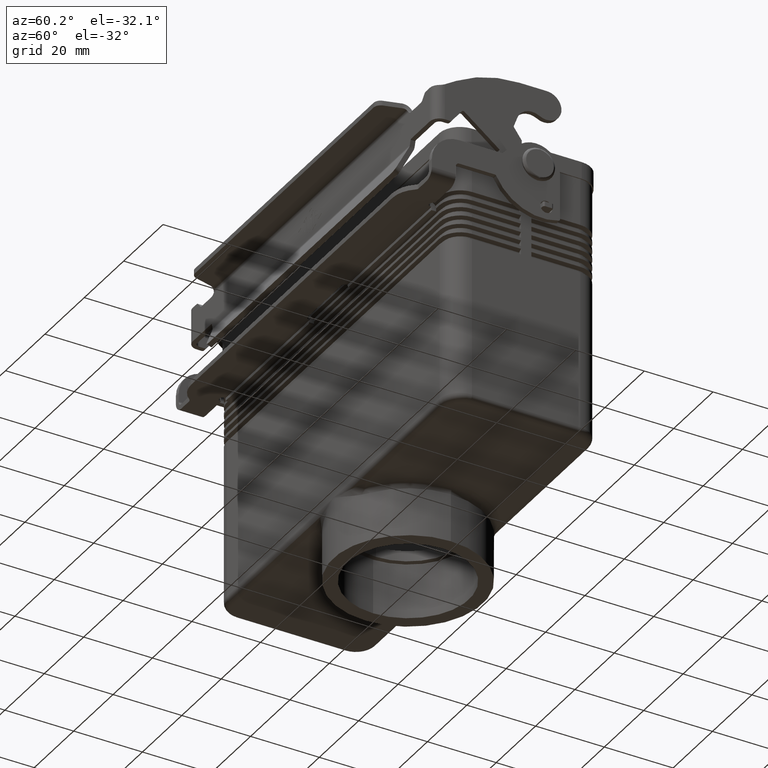
[diagram: clean part render]
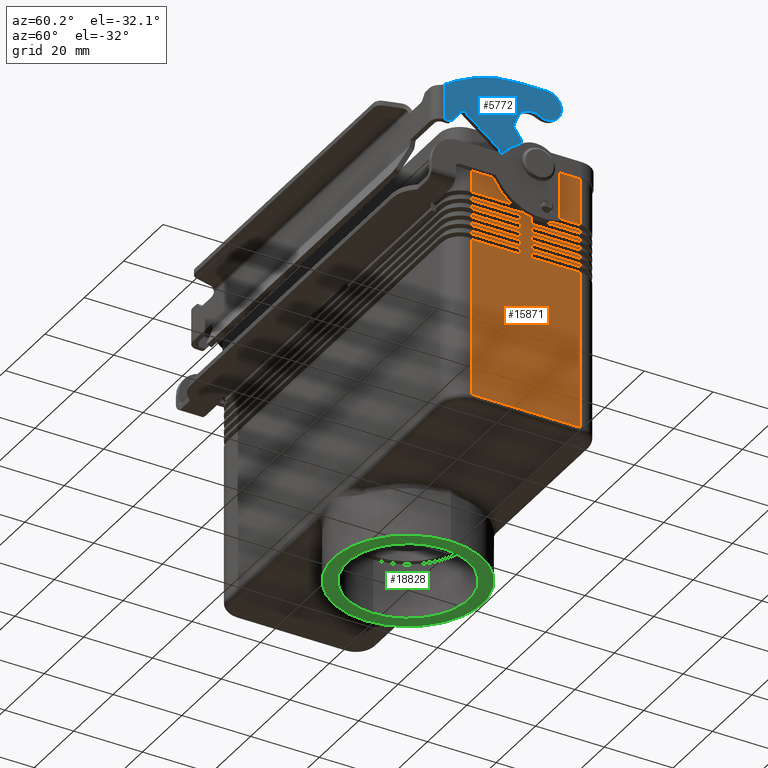
[diagram: same view with three faces highlighted in distinct colors, each labeled with its STEP entity id]
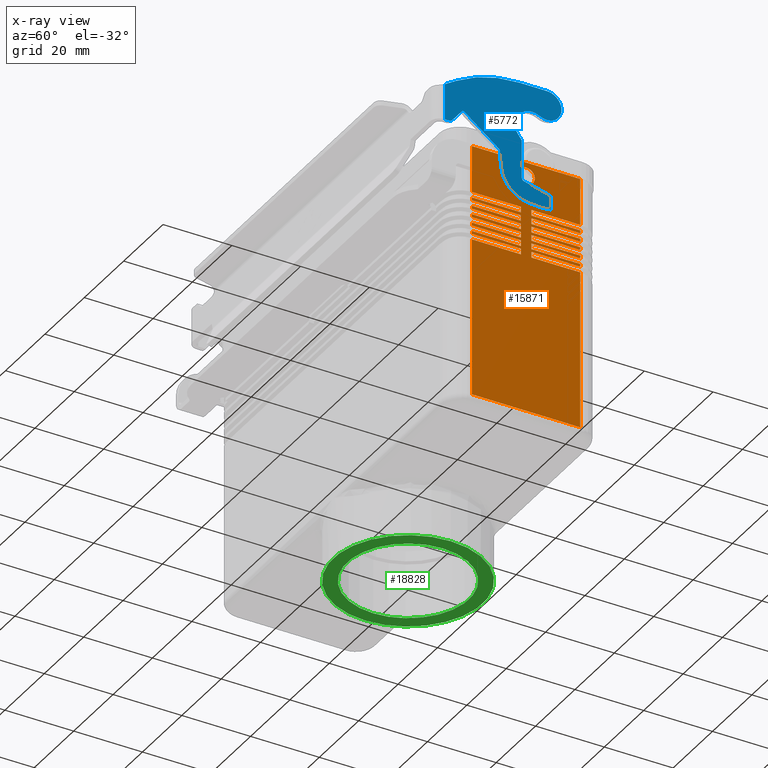
[diagram: x-ray of the same camera — body ghosted, the three highlighted faces saturated]
A machine part, auxiliary view with three faces highlighted in distinct colors.
The next image is the same camera in x-ray (body ghosted, the three faces saturated) — at least one of them is partly hidden behind the body in this view.
Their STEP definitions:

[orange] entity #15871 — the highlighted planar face has unit normal (1, 0, 0).
#9230=CARTESIAN_POINT('',(59.999999999999964,0.0,2.500000000000036));
#9231=VERTEX_POINT('',#9230);
#9240=CARTESIAN_POINT('',(60.0,3.061516E-016,-2.499999999999957));
#9241=VERTEX_POINT('',#9240);
#9242=CARTESIAN_POINT('',(60.000000000000007,0.0,3.821030E-014));
#9243=DIRECTION('',(-1.0,0.0,0.0));
#9244=DIRECTION('',(0.0,0.0,1.0));
#9245=AXIS2_PLACEMENT_3D('',#9242,#9243,#9244);
#9246=CIRCLE('',#9245,2.499999999999996);
#9247=EDGE_CURVE('',#9241,#9231,#9246,.T.);
#9335=CARTESIAN_POINT('',(60.0,-1.500000000000000,-23.827350269189623));
#9336=VERTEX_POINT('',#9335);
#9337=CARTESIAN_POINT('',(59.999999999999993,-15.750000000000004,-23.827350269189616));
#9338=VERTEX_POINT('',#9337);
#9339=CARTESIAN_POINT('',(60.0,-1.500000000000000,-23.827350269189623));
#9340=DIRECTION('',(0.0,-1.0,0.0));
#9341=VECTOR('',#9340,14.250000000000004);
#9342=LINE('',#9339,#9341);
#9343=EDGE_CURVE('',#9336,#9338,#9342,.T.);
#9785=CARTESIAN_POINT('',(59.999999999999993,-15.750000000000004,-22.172649730810384));
#9786=VERTEX_POINT('',#9785);
#9856=CARTESIAN_POINT('',(60.0,-1.500000000000000,-22.172649730810381));
#9857=VERTEX_POINT('',#9856);
#9858=CARTESIAN_POINT('',(59.999999999999993,-15.750000000000004,-22.172649730810384));
#9859=DIRECTION('',(0.0,1.0,0.0));
#9860=VECTOR('',#9859,14.250000000000004);
#9861=LINE('',#9858,#9860);
#9862=EDGE_CURVE('',#9786,#9857,#9861,.T.);
#9904=CARTESIAN_POINT('',(60.0,-1.500000000000000,-22.172649730810381));
#9905=DIRECTION('',(0.0,0.0,-1.0));
#9906=VECTOR('',#9905,1.654700538379242);
#9907=LINE('',#9904,#9906);
#9908=EDGE_CURVE('',#9857,#9336,#9907,.T.);
#9921=CARTESIAN_POINT('',(60.0,-1.500000000000000,-21.327350269189623));
#9922=VERTEX_POINT('',#9921);
#9923=CARTESIAN_POINT('',(59.999999999999993,-15.750000000000004,-21.327350269189619));
#9924=VERTEX_POINT('',#9923);
#9925=CARTESIAN_POINT('',(60.0,-1.500000000000000,-21.327350269189623));
#9926=DIRECTION('',(0.0,-1.0,0.0));
#9927=VECTOR('',#9926,14.250000000000004);
#9928=LINE('',#9925,#9927);
#9929=EDGE_CURVE('',#9922,#9924,#9928,.T.);
#10371=CARTESIAN_POINT('',(59.999999999999993,-15.750000000000004,-19.672649730810381));
#10372=VERTEX_POINT('',#10371);
#10442=CARTESIAN_POINT('',(60.0,-1.500000000000000,-19.672649730810377));
#10443=VERTEX_POINT('',#10442);
#10444=CARTESIAN_POINT('',(59.999999999999993,-15.750000000000004,-19.672649730810381));
#10445=DIRECTION('',(0.0,1.0,0.0));
#10446=VECTOR('',#10445,14.250000000000004);
#10447=LINE('',#10444,#10446);
#10448=EDGE_CURVE('',#10372,#10443,#10447,.T.);
#10490=CARTESIAN_POINT('',(60.0,-1.500000000000000,-19.672649730810377));
#10491=DIRECTION('',(0.0,0.0,-1.0));
#10492=VECTOR('',#10491,1.654700538379245);
#10493=LINE('',#10490,#10492);
#10494=EDGE_CURVE('',#10443,#9922,#10493,.T.);
#10507=CARTESIAN_POINT('',(60.0,-1.500000000000000,-18.827350269189623));
#10508=VERTEX_POINT('',#10507);
#10509=CARTESIAN_POINT('',(59.999999999999993,-15.750000000000004,-18.827350269189619));
#10510=VERTEX_POINT('',#10509);
#10511=CARTESIAN_POINT('',(60.0,-1.500000000000000,-18.827350269189623));
#10512=DIRECTION('',(0.0,-1.0,0.0));
#10513=VECTOR('',#10512,14.250000000000004);
#10514=LINE('',#10511,#10513);
#10515=EDGE_CURVE('',#10508,#10510,#10514,.T.);
#10957=CARTESIAN_POINT('',(59.999999999999993,-15.750000000000004,-17.172649730810384));
#10958=VERTEX_POINT('',#10957);
#11028=CARTESIAN_POINT('',(60.0,-1.500000000000000,-17.172649730810377));
#11029=VERTEX_POINT('',#11028);
#11030=CARTESIAN_POINT('',(59.999999999999993,-15.750000000000004,-17.172649730810384));
#11031=DIRECTION('',(0.0,1.0,0.0));
#11032=VECTOR('',#11031,14.250000000000004);
#11033=LINE('',#11030,#11032);
#11034=EDGE_CURVE('',#10958,#11029,#11033,.T.);
#11076=CARTESIAN_POINT('',(60.0,-1.500000000000000,-17.172649730810377));
#11077=DIRECTION('',(0.0,0.0,-1.0));
#11078=VECTOR('',#11077,1.654700538379245);
#11079=LINE('',#11076,#11078);
#11080=EDGE_CURVE('',#11029,#10508,#11079,.T.);
#11093=CARTESIAN_POINT('',(60.0,-1.500000000000000,-16.327350269189623));
#11094=VERTEX_POINT('',#11093);
#11095=CARTESIAN_POINT('',(59.999999999999993,-15.750000000000004,-16.327350269189623));
#11096=VERTEX_POINT('',#11095);
#11097=CARTESIAN_POINT('',(60.0,-1.500000000000000,-16.327350269189623));
#11098=DIRECTION('',(0.0,-1.0,0.0));
#11099=VECTOR('',#11098,14.250000000000004);
#11100=LINE('',#11097,#11099);
#11101=EDGE_CURVE('',#11094,#11096,#11100,.T.);
#11543=CARTESIAN_POINT('',(59.999999999999993,-15.750000000000004,-14.672649730810383));
#11544=VERTEX_POINT('',#11543);
#11614=CARTESIAN_POINT('',(60.0,-1.500000000000000,-14.672649730810377));
#11615=VERTEX_POINT('',#11614);
#11616=CARTESIAN_POINT('',(59.999999999999993,-15.750000000000004,-14.672649730810383));
#11617=DIRECTION('',(0.0,1.0,0.0));
#11618=VECTOR('',#11617,14.250000000000004);
#11619=LINE('',#11616,#11618);
#11620=EDGE_CURVE('',#11544,#11615,#11619,.T.);
#11662=CARTESIAN_POINT('',(60.0,-1.500000000000000,-14.672649730810377));
#11663=DIRECTION('',(0.0,0.0,-1.0));
#11664=VECTOR('',#11663,1.654700538379245);
#11665=LINE('',#11662,#11664);
#11666=EDGE_CURVE('',#11615,#11094,#11665,.T.);
#11679=CARTESIAN_POINT('',(60.0,-1.500000000000000,-13.827350269189623));
#11680=VERTEX_POINT('',#11679);
#11681=CARTESIAN_POINT('',(59.999999999999993,-15.750000000000004,-13.827350269189617));
#11682=VERTEX_POINT('',#11681);
#11683=CARTESIAN_POINT('',(60.0,-1.500000000000000,-13.827350269189623));
#11684=DIRECTION('',(0.0,-1.0,0.0));
#11685=VECTOR('',#11684,14.250000000000004);
#11686=LINE('',#11683,#11685);
#11687=EDGE_CURVE('',#11680,#11682,#11686,.T.);
#12129=CARTESIAN_POINT('',(59.999999999999993,-15.750000000000004,-12.172649730810383));
#12130=VERTEX_POINT('',#12129);
#12200=CARTESIAN_POINT('',(60.0,-1.500000000000000,-12.172649730810377));
#12201=VERTEX_POINT('',#12200);
#12202=CARTESIAN_POINT('',(59.999999999999993,-15.750000000000004,-12.172649730810383));
#12203=DIRECTION('',(0.0,1.0,0.0));
#12204=VECTOR('',#12203,14.250000000000004);
#12205=LINE('',#12202,#12204);
#12206=EDGE_CURVE('',#12130,#12201,#12205,.T.);
#12248=CARTESIAN_POINT('',(60.0,-1.500000000000000,-12.172649730810377));
#12249=DIRECTION('',(0.0,0.0,-1.0));
#12250=VECTOR('',#12249,1.654700538379245);
#12251=LINE('',#12248,#12250);
#12252=EDGE_CURVE('',#12201,#11680,#12251,.T.);
#12266=CARTESIAN_POINT('',(60.0,-15.750000000000004,-11.327350269189623));
#12267=VERTEX_POINT('',#12266);
#12268=CARTESIAN_POINT('',(60.0,-15.750000000000004,-11.327350269189623));
#12269=DIRECTION('',(0.0,0.0,-1.0));
#12270=VECTOR('',#12269,0.845299461620760);
#12271=LINE('',#12268,#12270);
#12272=EDGE_CURVE('',#12267,#12130,#12271,.T.);
#12298=CARTESIAN_POINT('',(59.999999999999993,-15.750000000000004,-13.827350269189617));
#12299=DIRECTION('',(0.0,0.0,-1.0));
#12300=VECTOR('',#12299,0.845299461620765);
#12301=LINE('',#12298,#12300);
#12302=EDGE_CURVE('',#11682,#11544,#12301,.T.);
#12320=CARTESIAN_POINT('',(59.999999999999993,-15.750000000000004,-16.327350269189623));
#12321=DIRECTION('',(0.0,0.0,-1.0));
#12322=VECTOR('',#12321,0.845299461620762);
#12323=LINE('',#12320,#12322);
#12324=EDGE_CURVE('',#11096,#10958,#12323,.T.);
#12342=CARTESIAN_POINT('',(59.999999999999993,-15.750000000000004,-18.827350269189619));
#12343=DIRECTION('',(0.0,0.0,-1.0));
#12344=VECTOR('',#12343,0.845299461620762);
#12345=LINE('',#12342,#12344);
#12346=EDGE_CURVE('',#10510,#10372,#12345,.T.);
#12364=CARTESIAN_POINT('',(59.999999999999993,-15.750000000000004,-21.327350269189619));
#12365=DIRECTION('',(0.0,0.0,-1.0));
#12366=VECTOR('',#12365,0.845299461620765);
#12367=LINE('',#12364,#12366);
#12368=EDGE_CURVE('',#9924,#9786,#12367,.T.);
#12394=CARTESIAN_POINT('',(60.0,-15.750000000000004,-69.999999999999986));
#12395=VERTEX_POINT('',#12394);
#12403=CARTESIAN_POINT('',(59.999999999999993,-15.750000000000004,-23.827350269189616));
#12404=DIRECTION('',(0.0,0.0,-1.0));
#12405=VECTOR('',#12404,46.172649730810370);
#12406=LINE('',#12403,#12405);
#12407=EDGE_CURVE('',#9338,#12395,#12406,.T.);
#12936=CARTESIAN_POINT('',(60.0,-1.500000000000000,-11.327350269189623));
#12937=VERTEX_POINT('',#12936);
#12938=CARTESIAN_POINT('',(60.0,-1.500000000000000,-11.327350269189623));
#12939=DIRECTION('',(0.0,-1.0,0.0));
#12940=VECTOR('',#12939,14.250000000000004);
#12941=LINE('',#12938,#12940);
#12942=EDGE_CURVE('',#12937,#12267,#12941,.T.);
#13340=CARTESIAN_POINT('',(60.0,-15.750000000000004,-9.672649730810377));
#13341=VERTEX_POINT('',#13340);
#13411=CARTESIAN_POINT('',(60.0,-1.500000000000000,-9.672649730810377));
#13412=VERTEX_POINT('',#13411);
#13413=CARTESIAN_POINT('',(60.0,-15.750000000000004,-9.672649730810377));
#13414=DIRECTION('',(0.0,1.0,0.0));
#13415=VECTOR('',#13414,14.250000000000004);
#13416=LINE('',#13413,#13415);
#13417=EDGE_CURVE('',#13341,#13412,#13416,.T.);
#13459=CARTESIAN_POINT('',(60.0,-1.500000000000000,-9.672649730810377));
#13460=DIRECTION('',(0.0,0.0,-1.0));
#13461=VECTOR('',#13460,1.654700538379245);
#13462=LINE('',#13459,#13461);
#13463=EDGE_CURVE('',#13412,#12937,#13462,.T.);
#13477=CARTESIAN_POINT('',(60.0,-15.750000000000004,4.000000000000004));
#13478=VERTEX_POINT('',#13477);
#13479=CARTESIAN_POINT('',(60.0,-15.750000000000004,4.000000000000004));
#13480=DIRECTION('',(0.0,0.0,-1.0));
#13481=VECTOR('',#13480,13.672649730810381);
#13482=LINE('',#13479,#13481);
#13483=EDGE_CURVE('',#13478,#13341,#13482,.T.);
#13550=CARTESIAN_POINT('',(60.0,15.750000000000004,-23.827350269189623));
#13551=VERTEX_POINT('',#13550);
#13552=CARTESIAN_POINT('',(60.0,1.500000000000000,-23.827350269189623));
#13553=VERTEX_POINT('',#13552);
#13554=CARTESIAN_POINT('',(60.0,15.750000000000004,-23.827350269189623));
#13555=DIRECTION('',(0.0,-1.0,0.0));
#13556=VECTOR('',#13555,14.250000000000004);
#13557=LINE('',#13554,#13556);
#13558=EDGE_CURVE('',#13551,#13553,#13557,.T.);
#13590=CARTESIAN_POINT('',(60.0,1.500000000000000,-22.172649730810381));
#13591=VERTEX_POINT('',#13590);
#13592=CARTESIAN_POINT('',(60.0,1.500000000000000,-23.827350269189623));
#13593=DIRECTION('',(0.0,0.0,1.0));
#13594=VECTOR('',#13593,1.654700538379242);
#13595=LINE('',#13592,#13594);
#13596=EDGE_CURVE('',#13553,#13591,#13595,.T.);
#13621=CARTESIAN_POINT('',(60.0,15.750000000000004,-22.172649730810381));
#13622=VERTEX_POINT('',#13621);
#13623=CARTESIAN_POINT('',(60.0,1.500000000000000,-22.172649730810381));
#13624=DIRECTION('',(0.0,1.0,0.0));
#13625=VECTOR('',#13624,14.250000000000004);
#13626=LINE('',#13623,#13625);
#13627=EDGE_CURVE('',#13591,#13622,#13626,.T.);
#13987=CARTESIAN_POINT('',(60.0,15.750000000000004,-21.327350269189623));
#13988=VERTEX_POINT('',#13987);
#13989=CARTESIAN_POINT('',(60.0,1.500000000000000,-21.327350269189623));
#13990=VERTEX_POINT('',#13989);
#13991=CARTESIAN_POINT('',(60.0,15.750000000000004,-21.327350269189623));
#13992=DIRECTION('',(0.0,-1.0,0.0));
#13993=VECTOR('',#13992,14.250000000000004);
#13994=LINE('',#13991,#13993);
#13995=EDGE_CURVE('',#13988,#13990,#13994,.T.);
#14027=CARTESIAN_POINT('',(60.0,1.500000000000000,-19.672649730810377));
#14028=VERTEX_POINT('',#14027);
#14029=CARTESIAN_POINT('',(60.0,1.500000000000000,-21.327350269189623));
#14030=DIRECTION('',(0.0,0.0,1.0));
#14031=VECTOR('',#14030,1.654700538379245);
#14032=LINE('',#14029,#14031);
#14033=EDGE_CURVE('',#13990,#14028,#14032,.T.);
#14058=CARTESIAN_POINT('',(60.0,15.750000000000004,-19.672649730810377));
#14059=VERTEX_POINT('',#14058);
#14060=CARTESIAN_POINT('',(60.0,1.500000000000000,-19.672649730810377));
#14061=DIRECTION('',(0.0,1.0,0.0));
#14062=VECTOR('',#14061,14.250000000000004);
#14063=LINE('',#14060,#14062);
#14064=EDGE_CURVE('',#14028,#14059,#14063,.T.);
#14424=CARTESIAN_POINT('',(60.0,15.750000000000004,-18.827350269189623));
#14425=VERTEX_POINT('',#14424);
#14426=CARTESIAN_POINT('',(60.0,1.500000000000000,-18.827350269189623));
#14427=VERTEX_POINT('',#14426);
#14428=CARTESIAN_POINT('',(60.0,15.750000000000004,-18.827350269189623));
#14429=DIRECTION('',(0.0,-1.0,0.0));
#14430=VECTOR('',#14429,14.250000000000004);
#14431=LINE('',#14428,#14430);
#14432=EDGE_CURVE('',#14425,#14427,#14431,.T.);
#14464=CARTESIAN_POINT('',(60.0,1.500000000000000,-17.172649730810377));
#14465=VERTEX_POINT('',#14464);
#14466=CARTESIAN_POINT('',(60.0,1.500000000000000,-18.827350269189623));
#14467=DIRECTION('',(0.0,0.0,1.0));
#14468=VECTOR('',#14467,1.654700538379245);
#14469=LINE('',#14466,#14468);
#14470=EDGE_CURVE('',#14427,#14465,#14469,.T.);
#14495=CARTESIAN_POINT('',(60.0,15.750000000000004,-17.172649730810377));
#14496=VERTEX_POINT('',#14495);
#14497=CARTESIAN_POINT('',(60.0,1.500000000000000,-17.172649730810377));
#14498=DIRECTION('',(0.0,1.0,0.0));
#14499=VECTOR('',#14498,14.250000000000004);
#14500=LINE('',#14497,#14499);
#14501=EDGE_CURVE('',#14465,#14496,#14500,.T.);
#14861=CARTESIAN_POINT('',(60.0,15.750000000000004,-16.327350269189623));
#14862=VERTEX_POINT('',#14861);
#14863=CARTESIAN_POINT('',(60.0,1.500000000000000,-16.327350269189623));
#14864=VERTEX_POINT('',#14863);
#14865=CARTESIAN_POINT('',(60.0,15.750000000000004,-16.327350269189623));
#14866=DIRECTION('',(0.0,-1.0,0.0));
#14867=VECTOR('',#14866,14.250000000000004);
#14868=LINE('',#14865,#14867);
#14869=EDGE_CURVE('',#14862,#14864,#14868,.T.);
#14901=CARTESIAN_POINT('',(60.0,1.500000000000000,-14.672649730810377));
#14902=VERTEX_POINT('',#14901);
#14903=CARTESIAN_POINT('',(60.0,1.500000000000000,-16.327350269189623));
#14904=DIRECTION('',(0.0,0.0,1.0));
#14905=VECTOR('',#14904,1.654700538379245);
#14906=LINE('',#14903,#14905);
#14907=EDGE_CURVE('',#14864,#14902,#14906,.T.);
#14932=CARTESIAN_POINT('',(60.0,15.750000000000004,-14.672649730810377));
#14933=VERTEX_POINT('',#14932);
#14934=CARTESIAN_POINT('',(60.0,1.500000000000000,-14.672649730810377));
#14935=DIRECTION('',(0.0,1.0,0.0));
#14936=VECTOR('',#14935,14.250000000000004);
#14937=LINE('',#14934,#14936);
#14938=EDGE_CURVE('',#14902,#14933,#14937,.T.);
#15298=CARTESIAN_POINT('',(60.0,15.750000000000004,-13.827350269189623));
#15299=VERTEX_POINT('',#15298);
#15300=CARTESIAN_POINT('',(60.0,1.500000000000000,-13.827350269189623));
#15301=VERTEX_POINT('',#15300);
#15302=CARTESIAN_POINT('',(60.0,15.750000000000004,-13.827350269189623));
#15303=DIRECTION('',(0.0,-1.0,0.0));
#15304=VECTOR('',#15303,14.250000000000004);
#15305=LINE('',#15302,#15304);
#15306=EDGE_CURVE('',#15299,#15301,#15305,.T.);
#15338=CARTESIAN_POINT('',(60.0,1.500000000000000,-12.172649730810377));
#15339=VERTEX_POINT('',#15338);
#15340=CARTESIAN_POINT('',(60.0,1.500000000000000,-13.827350269189623));
#15341=DIRECTION('',(0.0,0.0,1.0));
#15342=VECTOR('',#15341,1.654700538379245);
#15343=LINE('',#15340,#15342);
#15344=EDGE_CURVE('',#15301,#15339,#15343,.T.);
#15369=CARTESIAN_POINT('',(60.0,15.750000000000004,-12.172649730810377));
#15370=VERTEX_POINT('',#15369);
#15371=CARTESIAN_POINT('',(60.0,1.500000000000000,-12.172649730810377));
#15372=DIRECTION('',(0.0,1.0,0.0));
#15373=VECTOR('',#15372,14.250000000000004);
#15374=LINE('',#15371,#15373);
#15375=EDGE_CURVE('',#15339,#15370,#15374,.T.);
#15730=CARTESIAN_POINT('',(60.0,-15.750000000000004,9.0));
#15731=DIRECTION('',(1.0,0.0,0.0));
#15732=DIRECTION('',(0.0,0.0,-1.0));
#15733=AXIS2_PLACEMENT_3D('',#15730,#15731,#15732);
#15734=PLANE('',#15733);
#15735=ORIENTED_EDGE('',*,*,#9343,.T.);
#15736=ORIENTED_EDGE('',*,*,#12407,.T.);
#15737=CARTESIAN_POINT('',(60.0,15.750000000000004,-69.999999999999986));
#15738=VERTEX_POINT('',#15737);
#15739=CARTESIAN_POINT('',(60.0,15.750000000000004,-69.999999999999986));
#15740=DIRECTION('',(0.0,-1.0,0.0));
#15741=VECTOR('',#15740,31.500000000000007);
#15742=LINE('',#15739,#15741);
#15743=EDGE_CURVE('',#15738,#12395,#15742,.T.);
#15744=ORIENTED_EDGE('',*,*,#15743,.F.);
#15745=CARTESIAN_POINT('',(60.0,15.750000000000004,-23.827350269189623));
#15746=DIRECTION('',(0.0,0.0,-1.0));
#15747=VECTOR('',#15746,46.172649730810363);
#15748=LINE('',#15745,#15747);
#15749=EDGE_CURVE('',#13551,#15738,#15748,.T.);
#15750=ORIENTED_EDGE('',*,*,#15749,.F.);
#15751=ORIENTED_EDGE('',*,*,#13558,.T.);
#15752=ORIENTED_EDGE('',*,*,#13596,.T.);
#15753=ORIENTED_EDGE('',*,*,#13627,.T.);
#15754=CARTESIAN_POINT('',(60.0,15.750000000000004,-21.327350269189623));
#15755=DIRECTION('',(0.0,0.0,-1.0));
#15756=VECTOR('',#15755,0.845299461620758);
#15757=LINE('',#15754,#15756);
#15758=EDGE_CURVE('',#13988,#13622,#15757,.T.);
#15759=ORIENTED_EDGE('',*,*,#15758,.F.);
#15760=ORIENTED_EDGE('',*,*,#13995,.T.);
#15761=ORIENTED_EDGE('',*,*,#14033,.T.);
#15762=ORIENTED_EDGE('',*,*,#14064,.T.);
#15763=CARTESIAN_POINT('',(60.0,15.750000000000004,-18.827350269189623));
#15764=DIRECTION('',(0.0,0.0,-1.0));
#15765=VECTOR('',#15764,0.845299461620755);
#15766=LINE('',#15763,#15765);
#15767=EDGE_CURVE('',#14425,#14059,#15766,.T.);
#15768=ORIENTED_EDGE('',*,*,#15767,.F.);
#15769=ORIENTED_EDGE('',*,*,#14432,.T.);
#15770=ORIENTED_EDGE('',*,*,#14470,.T.);
#15771=ORIENTED_EDGE('',*,*,#14501,.T.);
#15772=CARTESIAN_POINT('',(60.0,15.750000000000004,-16.327350269189623));
#15773=DIRECTION('',(0.0,0.0,-1.0));
#15774=VECTOR('',#15773,0.845299461620755);
#15775=LINE('',#15772,#15774);
#15776=EDGE_CURVE('',#14862,#14496,#15775,.T.);
#15777=ORIENTED_EDGE('',*,*,#15776,.F.);
#15778=ORIENTED_EDGE('',*,*,#14869,.T.);
#15779=ORIENTED_EDGE('',*,*,#14907,.T.);
#15780=ORIENTED_EDGE('',*,*,#14938,.T.);
#15781=CARTESIAN_POINT('',(60.0,15.750000000000004,-13.827350269189623));
#15782=DIRECTION('',(0.0,0.0,-1.0));
#15783=VECTOR('',#15782,0.845299461620755);
#15784=LINE('',#15781,#15783);
#15785=EDGE_CURVE('',#15299,#14933,#15784,.T.);
#15786=ORIENTED_EDGE('',*,*,#15785,.F.);
#15787=ORIENTED_EDGE('',*,*,#15306,.T.);
#15788=ORIENTED_EDGE('',*,*,#15344,.T.);
#15789=ORIENTED_EDGE('',*,*,#15375,.T.);
#15790=CARTESIAN_POINT('',(60.0,15.750000000000004,-11.327350269189623));
#15791=VERTEX_POINT('',#15790);
#15792=CARTESIAN_POINT('',(60.0,15.750000000000004,-11.327350269189623));
#15793=DIRECTION('',(0.0,0.0,-1.0));
#15794=VECTOR('',#15793,0.845299461620755);
#15795=LINE('',#15792,#15794);
#15796=EDGE_CURVE('',#15791,#15370,#15795,.T.);
#15797=ORIENTED_EDGE('',*,*,#15796,.F.);
#15798=CARTESIAN_POINT('',(60.0,1.500000000000000,-11.327350269189623));
#15799=VERTEX_POINT('',#15798);
#15800=CARTESIAN_POINT('',(60.0,15.750000000000004,-11.327350269189623));
#15801=DIRECTION('',(0.0,-1.0,0.0));
#15802=VECTOR('',#15801,14.250000000000004);
#15803=LINE('',#15800,#15802);
#15804=EDGE_CURVE('',#15791,#15799,#15803,.T.);
#15805=ORIENTED_EDGE('',*,*,#15804,.T.);
#15806=CARTESIAN_POINT('',(60.0,1.500000000000000,-9.672649730810377));
#15807=VERTEX_POINT('',#15806);
#15808=CARTESIAN_POINT('',(60.0,1.500000000000000,-11.327350269189623));
#15809=DIRECTION('',(0.0,0.0,1.0));
#15810=VECTOR('',#15809,1.654700538379245);
#15811=LINE('',#15808,#15810);
#15812=EDGE_CURVE('',#15799,#15807,#15811,.T.);
#15813=ORIENTED_EDGE('',*,*,#15812,.T.);
#15814=CARTESIAN_POINT('',(60.0,15.750000000000004,-9.672649730810377));
#15815=VERTEX_POINT('',#15814);
#15816=CARTESIAN_POINT('',(60.0,1.500000000000000,-9.672649730810377));
#15817=DIRECTION('',(0.0,1.0,0.0));
#15818=VECTOR('',#15817,14.250000000000004);
#15819=LINE('',#15816,#15818);
#15820=EDGE_CURVE('',#15807,#15815,#15819,.T.);
#15821=ORIENTED_EDGE('',*,*,#15820,.T.);
#15822=CARTESIAN_POINT('',(60.0,15.750000000000004,4.000000000000004));
#15823=VERTEX_POINT('',#15822);
#15824=CARTESIAN_POINT('',(60.0,15.750000000000004,4.000000000000004));
#15825=DIRECTION('',(0.0,0.0,-1.0));
#15826=VECTOR('',#15825,13.672649730810381);
#15827=LINE('',#15824,#15826);
#15828=EDGE_CURVE('',#15823,#15815,#15827,.T.);
#15829=ORIENTED_EDGE('',*,*,#15828,.F.);
#15830=CARTESIAN_POINT('',(60.0,15.750000000000004,4.000000000000004));
#15831=DIRECTION('',(0.0,-1.0,0.0));
#15832=VECTOR('',#15831,31.500000000000007);
#15833=LINE('',#15830,#15832);
#15834=EDGE_CURVE('',#15823,#13478,#15833,.T.);
#15835=ORIENTED_EDGE('',*,*,#15834,.T.);
#15836=ORIENTED_EDGE('',*,*,#13483,.T.);
#15837=ORIENTED_EDGE('',*,*,#13417,.T.);
#15838=ORIENTED_EDGE('',*,*,#13463,.T.);
#15839=ORIENTED_EDGE('',*,*,#12942,.T.);
#15840=ORIENTED_EDGE('',*,*,#12272,.T.);
#15841=ORIENTED_EDGE('',*,*,#12206,.T.);
#15842=ORIENTED_EDGE('',*,*,#12252,.T.);
#15843=ORIENTED_EDGE('',*,*,#11687,.T.);
#15844=ORIENTED_EDGE('',*,*,#12302,.T.);
#15845=ORIENTED_EDGE('',*,*,#11620,.T.);
#15846=ORIENTED_EDGE('',*,*,#11666,.T.);
#15847=ORIENTED_EDGE('',*,*,#11101,.T.);
#15848=ORIENTED_EDGE('',*,*,#12324,.T.);
#15849=ORIENTED_EDGE('',*,*,#11034,.T.);
#15850=ORIENTED_EDGE('',*,*,#11080,.T.);
#15851=ORIENTED_EDGE('',*,*,#10515,.T.);
#15852=ORIENTED_EDGE('',*,*,#12346,.T.);
#15853=ORIENTED_EDGE('',*,*,#10448,.T.);
#15854=ORIENTED_EDGE('',*,*,#10494,.T.);
#15855=ORIENTED_EDGE('',*,*,#9929,.T.);
#15856=ORIENTED_EDGE('',*,*,#12368,.T.);
#15857=ORIENTED_EDGE('',*,*,#9862,.T.);
#15858=ORIENTED_EDGE('',*,*,#9908,.T.);
#15859=EDGE_LOOP('',(#15735,#15736,#15744,#15750,#15751,#15752,#15753,#15759,#15760,#15761,#15762,#15768,#15769,#15770,#15771,#15777,#15778,#15779,#15780,#15786,#15787,#15788,#15789,#15797,#15805,#15813,#15821,#15829,#15835,#15836,#15837,#15838,#15839,#15840,#15841,#15842,#15843,#15844,#15845,#15846,#15847,#15848,#15849,#15850,#15851,#15852,#15853,#15854,#15855,#15856,#15857,#15858));
#15860=FACE_OUTER_BOUND('',#15859,.T.);
#15861=CARTESIAN_POINT('',(60.000000000000007,0.0,3.821030E-014));
#15862=DIRECTION('',(-1.0,0.0,0.0));
#15863=DIRECTION('',(0.0,0.0,1.0));
#15864=AXIS2_PLACEMENT_3D('',#15861,#15862,#15863);
#15865=CIRCLE('',#15864,2.499999999999996);
#15866=EDGE_CURVE('',#9231,#9241,#15865,.T.);
#15867=ORIENTED_EDGE('',*,*,#15866,.T.);
#15868=ORIENTED_EDGE('',*,*,#9247,.T.);
#15869=EDGE_LOOP('',(#15867,#15868));
#15870=FACE_BOUND('',#15869,.T.);
#15871=ADVANCED_FACE('',(#15860,#15870),#15734,.T.);

[blue] entity #5772 — the highlighted face is a freeform B-spline surface patch.
#72=CARTESIAN_POINT('',(63.0,6.342010229414635,24.462500000000006));
#73=VERTEX_POINT('',#72);
#89=CARTESIAN_POINT('',(63.0,4.260281680828153,25.000000000000007));
#90=VERTEX_POINT('',#89);
#97=CARTESIAN_POINT('',(63.0,4.260281680828153,20.700000000000003));
#98=DIRECTION('',(1.000000000000000,0.0,0.0));
#99=DIRECTION('',(0.0,-0.484122918275926,-0.875000000000000));
#100=AXIS2_PLACEMENT_3D('',#97,#98,#99);
#101=CIRCLE('',#100,4.299999999999999);
#102=EDGE_CURVE('',#73,#90,#101,.T.);
#5201=CARTESIAN_POINT('',(62.999999999999972,-25.366637302590750,17.796241584191460));
#5202=VERTEX_POINT('',#5201);
#5462=CARTESIAN_POINT('',(62.999999999999972,-25.366637302590750,7.360985334995051));
#5463=VERTEX_POINT('',#5462);
#5471=CARTESIAN_POINT('',(62.999999999999972,-25.366637302590750,17.796241584191460));
#5472=DIRECTION('',(0.0,0.0,-1.0));
#5473=VECTOR('',#5472,10.435256249196410);
#5474=LINE('',#5471,#5473);
#5475=EDGE_CURVE('',#5202,#5463,#5474,.T.);
#5522=CARTESIAN_POINT('',(63.0,-22.025445526428999,19.843461268790108));
#5523=VERTEX_POINT('',#5522);
#5524=CARTESIAN_POINT('',(63.0,-22.025445526428999,19.843461268790108));
#5525=DIRECTION('',(-7.253205E-015,-0.852670321965433,-0.522449348778774));
#5526=VECTOR('',#5525,3.918503658553747);
#5527=LINE('',#5524,#5526);
#5528=EDGE_CURVE('',#5523,#5202,#5527,.T.);
#5547=CARTESIAN_POINT('',(62.999999999999979,8.560281680828155,25.000000000000007));
#5548=CARTESIAN_POINT('',(62.999999999999979,8.560281680828155,-10.137654915007424));
#5549=CARTESIAN_POINT('',(62.999999999999979,-25.366637302590746,25.000000000000007));
#5550=CARTESIAN_POINT('',(62.999999999999979,-25.366637302590746,-10.137654915007424));
#5551=B_SPLINE_SURFACE_WITH_KNOTS('',1,1,((#5547,#5549),(#5548,#5550)),.UNSPECIFIED.,.F.,.F.,.U.,(2,2),(2,2),(0.0,35.137654915007431),(0.0,33.926918983418901),.UNSPECIFIED.);
#5552=ORIENTED_EDGE('',*,*,#5475,.T.);
#5553=CARTESIAN_POINT('',(63.0,-24.000000000000004,7.360985334995051));
#5554=VERTEX_POINT('',#5553);
#5555=CARTESIAN_POINT('',(62.999999999999972,-25.366637302590750,7.360985334995051));
#5556=DIRECTION('',(0.0,1.0,0.0));
#5557=VECTOR('',#5556,1.366637302590746);
#5558=LINE('',#5555,#5557);
#5559=EDGE_CURVE('',#5463,#5554,#5558,.T.);
#5560=ORIENTED_EDGE('',*,*,#5559,.T.);
#5561=CARTESIAN_POINT('',(63.0,-23.215700473814316,7.740602990609832));
#5562=VERTEX_POINT('',#5561);
#5563=CARTESIAN_POINT('',(63.0,-24.000000000000004,8.360985334995053));
#5564=DIRECTION('',(1.0,0.0,0.0));
#5565=DIRECTION('',(0.0,0.0,-1.0));
#5566=AXIS2_PLACEMENT_3D('',#5563,#5564,#5565);
#5567=CIRCLE('',#5566,1.0);
#5568=EDGE_CURVE('',#5554,#5562,#5567,.T.);
#5569=ORIENTED_EDGE('',*,*,#5568,.T.);
#5570=CARTESIAN_POINT('',(63.0,-20.392149763092849,11.310191172192617));
#5571=VERTEX_POINT('',#5570);
#5572=CARTESIAN_POINT('',(63.0,-23.215700473814316,7.740602990609832));
#5573=DIRECTION('',(0.0,0.620382344385222,0.784299526185689));
#5574=VECTOR('',#5573,4.551307328901356);
#5575=LINE('',#5572,#5574);
#5576=EDGE_CURVE('',#5562,#5571,#5575,.T.);
#5577=ORIENTED_EDGE('',*,*,#5576,.T.);
#5578=CARTESIAN_POINT('',(63.0,-19.689808827807390,11.392149763092847));
#5579=VERTEX_POINT('',#5578);
#5580=CARTESIAN_POINT('',(63.0,-19.999999999999996,11.000000000000004));
#5581=DIRECTION('',(-1.0,0.0,0.0));
#5582=DIRECTION('',(0.0,-0.620382344385220,-0.784299526185691));
#5583=AXIS2_PLACEMENT_3D('',#5580,#5581,#5582);
#5584=CIRCLE('',#5583,0.500000000000000);
#5585=EDGE_CURVE('',#5571,#5579,#5584,.T.);
#5586=ORIENTED_EDGE('',*,*,#5585,.T.);
#5587=CARTESIAN_POINT('',(63.0,-9.576051938572887,3.392149763092847));
#5588=VERTEX_POINT('',#5587);
#5589=CARTESIAN_POINT('',(63.0,-19.689808827807390,11.392149763092847));
#5590=DIRECTION('',(0.0,0.784299526185688,-0.620382344385223));
#5591=VECTOR('',#5590,12.895273491265641);
#5592=LINE('',#5589,#5591);
#5593=EDGE_CURVE('',#5579,#5588,#5592,.T.);
#5594=ORIENTED_EDGE('',*,*,#5593,.T.);
#5595=CARTESIAN_POINT('',(63.0,-9.388145761719624,3.043577871373832));
#5596=VERTEX_POINT('',#5595);
#5597=CARTESIAN_POINT('',(63.0,-9.886243110765498,3.000000000000003));
#5598=DIRECTION('',(-1.000000000000000,0.0,0.0));
#5599=DIRECTION('',(0.0,-0.996194698091746,-0.087155742747659));
#5600=AXIS2_PLACEMENT_3D('',#5597,#5598,#5599);
#5601=CIRCLE('',#5600,0.500000000000000);
#5602=EDGE_CURVE('',#5588,#5596,#5601,.T.);
#5603=ORIENTED_EDGE('',*,*,#5602,.T.);
#5604=CARTESIAN_POINT('',(63.0,-8.965752282825712,-1.784401684728924));
#5605=VERTEX_POINT('',#5604);
#5606=CARTESIAN_POINT('',(63.0,-9.388145761719624,3.043577871373832));
#5607=DIRECTION('',(0.0,0.087155742747658,-0.996194698091746));
#5608=VECTOR('',#5607,4.846421653669671);
#5609=LINE('',#5606,#5608);
#5610=EDGE_CURVE('',#5596,#5605,#5609,.T.);
#5611=ORIENTED_EDGE('',*,*,#5610,.T.);
#5612=CARTESIAN_POINT('',(63.0,0.0,-10.0));
#5613=VERTEX_POINT('',#5612);
#5614=CARTESIAN_POINT('',(63.0,-5.551115E-016,-1.000000000000000));
#5615=DIRECTION('',(1.0,0.0,0.0));
#5616=DIRECTION('',(0.0,-0.996194698091746,-0.087155742747658));
#5617=AXIS2_PLACEMENT_3D('',#5614,#5615,#5616);
#5618=CIRCLE('',#5617,9.0);
#5619=EDGE_CURVE('',#5605,#5613,#5618,.T.);
#5620=ORIENTED_EDGE('',*,*,#5619,.T.);
#5621=CARTESIAN_POINT('',(63.0,1.600000000000001,-10.0));
#5622=VERTEX_POINT('',#5621);
#5623=CARTESIAN_POINT('',(63.0,0.0,-10.0));
#5624=DIRECTION('',(0.0,1.0,0.0));
#5625=VECTOR('',#5624,1.600000000000001);
#5626=LINE('',#5623,#5625);
#5627=EDGE_CURVE('',#5613,#5622,#5626,.T.);
#5628=ORIENTED_EDGE('',*,*,#5627,.T.);
#5629=CARTESIAN_POINT('',(62.999999999999972,1.600000000000001,-10.137654915007420));
#5630=VERTEX_POINT('',#5629);
#5631=CARTESIAN_POINT('',(63.0,1.600000000000001,-10.0));
#5632=DIRECTION('',(-2.064707E-013,0.0,-1.0));
#5633=VECTOR('',#5632,0.137654915007420);
#5634=LINE('',#5631,#5633);
#5635=EDGE_CURVE('',#5622,#5630,#5634,.T.);
#5636=ORIENTED_EDGE('',*,*,#5635,.T.);
#5637=CARTESIAN_POINT('',(62.999999999999972,4.500000000000000,-10.137654915007420));
#5638=VERTEX_POINT('',#5637);
#5639=CARTESIAN_POINT('',(62.999999999999972,1.600000000000001,-10.137654915007420));
#5640=DIRECTION('',(0.0,1.0,0.0));
#5641=VECTOR('',#5640,2.900000000000000);
#5642=LINE('',#5639,#5641);
#5643=EDGE_CURVE('',#5630,#5638,#5642,.T.);
#5644=ORIENTED_EDGE('',*,*,#5643,.T.);
#5645=CARTESIAN_POINT('',(63.0,4.500000000000000,-10.0));
#5646=VERTEX_POINT('',#5645);
#5647=CARTESIAN_POINT('',(62.999999999999972,4.500000000000000,-10.137654915007420));
#5648=DIRECTION('',(2.064707E-013,0.0,1.0));
#5649=VECTOR('',#5648,0.137654915007420);
#5650=LINE('',#5647,#5649);
#5651=EDGE_CURVE('',#5638,#5646,#5650,.T.);
#5652=ORIENTED_EDGE('',*,*,#5651,.T.);
#5653=CARTESIAN_POINT('',(63.0,5.300000000000001,-10.0));
#5654=VERTEX_POINT('',#5653);
#5655=CARTESIAN_POINT('',(63.0,4.500000000000000,-10.0));
#5656=DIRECTION('',(0.0,1.0,0.0));
#5657=VECTOR('',#5656,0.800000000000001);
#5658=LINE('',#5655,#5657);
#5659=EDGE_CURVE('',#5646,#5654,#5658,.T.);
#5660=ORIENTED_EDGE('',*,*,#5659,.T.);
#5661=CARTESIAN_POINT('',(63.0,5.500000000000000,-9.800000000000001));
#5662=VERTEX_POINT('',#5661);
#5663=CARTESIAN_POINT('',(63.0,5.299999999999999,-9.799999999999999));
#5664=DIRECTION('',(1.0,0.0,0.0));
#5665=DIRECTION('',(0.0,0.0,-1.0));
#5666=AXIS2_PLACEMENT_3D('',#5663,#5664,#5665);
#5667=CIRCLE('',#5666,0.200000000000001);
#5668=EDGE_CURVE('',#5654,#5662,#5667,.T.);
#5669=ORIENTED_EDGE('',*,*,#5668,.T.);
#5670=CARTESIAN_POINT('',(63.0,5.500000000000002,-6.812222111622458));
#5671=VERTEX_POINT('',#5670);
#5672=CARTESIAN_POINT('',(63.0,5.500000000000000,-9.800000000000001));
#5673=DIRECTION('',(0.0,0.0,1.0));
#5674=VECTOR('',#5673,2.987777888377543);
#5675=LINE('',#5672,#5674);
#5676=EDGE_CURVE('',#5662,#5671,#5675,.T.);
#5677=ORIENTED_EDGE('',*,*,#5676,.T.);
#5678=CARTESIAN_POINT('',(63.0,4.758819045102520,-5.846296285333391));
#5679=VERTEX_POINT('',#5678);
#5680=CARTESIAN_POINT('',(63.0,4.500000000000001,-6.812222111622458));
#5681=DIRECTION('',(1.0,0.0,0.0));
#5682=DIRECTION('',(0.0,1.0,0.0));
#5683=AXIS2_PLACEMENT_3D('',#5680,#5681,#5682);
#5684=CIRCLE('',#5683,1.0);
#5685=EDGE_CURVE('',#5671,#5679,#5684,.T.);
#5686=ORIENTED_EDGE('',*,*,#5685,.T.);
#5687=CARTESIAN_POINT('',(63.0,-2.258819045102521,-3.965925826289068));
#5688=VERTEX_POINT('',#5687);
#5689=CARTESIAN_POINT('',(63.0,4.758819045102520,-5.846296285333391));
#5690=DIRECTION('',(0.0,-0.965925826289068,0.258819045102520));
#5691=VECTOR('',#5690,7.265193557527783);
#5692=LINE('',#5689,#5691);
#5693=EDGE_CURVE('',#5679,#5688,#5692,.T.);
#5694=ORIENTED_EDGE('',*,*,#5693,.T.);
#5695=CARTESIAN_POINT('',(63.0,-3.000000000000000,-2.999999999999998));
#5696=VERTEX_POINT('',#5695);
#5697=CARTESIAN_POINT('',(63.0,-2.000000000000000,-2.999999999999998));
#5698=DIRECTION('',(-1.0,0.0,0.0));
#5699=DIRECTION('',(0.0,1.0,0.0));
#5700=AXIS2_PLACEMENT_3D('',#5697,#5698,#5699);
#5701=CIRCLE('',#5700,1.0);
#5702=EDGE_CURVE('',#5688,#5696,#5701,.T.);
#5703=ORIENTED_EDGE('',*,*,#5702,.T.);
#5704=CARTESIAN_POINT('',(63.0,-3.000000000000000,8.0));
#5705=VERTEX_POINT('',#5704);
#5706=CARTESIAN_POINT('',(63.0,-3.000000000000000,-2.999999999999998));
#5707=DIRECTION('',(0.0,0.0,1.0));
#5708=VECTOR('',#5707,10.999999999999998);
#5709=LINE('',#5706,#5708);
#5710=EDGE_CURVE('',#5696,#5705,#5709,.T.);
#5711=ORIENTED_EDGE('',*,*,#5710,.T.);
#5712=CARTESIAN_POINT('',(63.0,-5.228877936336266,11.215134530698654));
#5713=VERTEX_POINT('',#5712);
#5714=CARTESIAN_POINT('',(63.0,-3.000000000000000,8.0));
#5715=DIRECTION('',(0.0,-0.569730938602697,0.821831282927883));
#5716=VECTOR('',#5715,3.912158854849514);
#5717=LINE('',#5714,#5716);
#5718=EDGE_CURVE('',#5705,#5713,#5717,.T.);
#5719=ORIENTED_EDGE('',*,*,#5718,.T.);
#5720=CARTESIAN_POINT('',(63.0,-5.287001955669658,11.673210267014177));
#5721=VERTEX_POINT('',#5720);
#5722=CARTESIAN_POINT('',(63.0,-4.817962294872324,11.500000000000004));
#5723=DIRECTION('',(-1.0,0.0,0.0));
#5724=DIRECTION('',(0.0,0.938079321594669,-0.346420534028349));
#5725=AXIS2_PLACEMENT_3D('',#5722,#5723,#5724);
#5726=CIRCLE('',#5725,0.500000000000000);
#5727=EDGE_CURVE('',#5713,#5721,#5726,.T.);
#5728=ORIENTED_EDGE('',*,*,#5727,.T.);
#5729=CARTESIAN_POINT('',(63.0,-4.221356947176012,14.558892403127569));
#5730=VERTEX_POINT('',#5729);
#5731=CARTESIAN_POINT('',(63.0,-5.287001955669658,11.673210267014177));
#5732=DIRECTION('',(0.0,0.346420534028348,0.938079321594669));
#5733=VECTOR('',#5732,3.076160053510118);
#5734=LINE('',#5731,#5733);
#5735=EDGE_CURVE('',#5721,#5730,#5734,.T.);
#5736=ORIENTED_EDGE('',*,*,#5735,.T.);
#5737=CARTESIAN_POINT('',(63.0,2.178553132241669,16.937500000000000));
#5738=VERTEX_POINT('',#5737);
#5739=CARTESIAN_POINT('',(63.0,0.0,13.0));
#5740=DIRECTION('',(-1.000000000000000,0.0,0.0));
#5741=DIRECTION('',(0.0,-0.484122918275927,-0.875000000000000));
#5742=AXIS2_PLACEMENT_3D('',#5739,#5740,#5741);
#5743=CIRCLE('',#5742,4.500000000000000);
#5744=EDGE_CURVE('',#5730,#5738,#5743,.T.);
#5745=ORIENTED_EDGE('',*,*,#5744,.T.);
#5746=CARTESIAN_POINT('',(63.0,4.260281680828153,20.700000000000003));
#5747=DIRECTION('',(1.000000000000000,0.0,0.0));
#5748=DIRECTION('',(0.0,-0.484122918275926,-0.875000000000000));
#5749=AXIS2_PLACEMENT_3D('',#5746,#5747,#5748);
#5750=CIRCLE('',#5749,4.299999999999999);
#5751=EDGE_CURVE('',#5738,#73,#5750,.T.);
#5752=ORIENTED_EDGE('',*,*,#5751,.T.);
#5753=ORIENTED_EDGE('',*,*,#102,.T.);
#5754=CARTESIAN_POINT('',(63.0,-3.739718319171848,25.000000000000007));
#5755=VERTEX_POINT('',#5754);
#5756=CARTESIAN_POINT('',(63.0,4.260281680828153,25.000000000000007));
#5757=DIRECTION('',(0.0,-1.0,0.0));
#5758=VECTOR('',#5757,8.0);
#5759=LINE('',#5756,#5758);
#5760=EDGE_CURVE('',#90,#5755,#5759,.T.);
#5761=ORIENTED_EDGE('',*,*,#5760,.T.);
#5762=CARTESIAN_POINT('',(63.0,-3.739718319171848,-9.999999999999996));
#5763=DIRECTION('',(1.0,0.0,0.0));
#5764=DIRECTION('',(0.0,0.0,1.0));
#5765=AXIS2_PLACEMENT_3D('',#5762,#5763,#5764);
#5766=CIRCLE('',#5765,35.0);
#5767=EDGE_CURVE('',#5755,#5523,#5766,.T.);
#5768=ORIENTED_EDGE('',*,*,#5767,.T.);
#5769=ORIENTED_EDGE('',*,*,#5528,.T.);
#5770=EDGE_LOOP('',(#5552,#5560,#5569,#5577,#5586,#5594,#5603,#5611,#5620,#5628,#5636,#5644,#5652,#5660,#5669,#5677,#5686,#5694,#5703,#5711,#5719,#5728,#5736,#5745,#5752,#5753,#5761,#5768,#5769));
#5771=FACE_OUTER_BOUND('',#5770,.T.);
#5772=ADVANCED_FACE('',(#5771),#5551,.F.);

[green] entity #18828 — the highlighted planar face has unit normal (0, 0, -1).
#7733=CARTESIAN_POINT('',(17.739999999999977,0.0,-88.0));
#7734=VERTEX_POINT('',#7733);
#7743=CARTESIAN_POINT('',(-17.739999999999998,2.172452E-015,-88.0));
#7744=VERTEX_POINT('',#7743);
#7745=CARTESIAN_POINT('',(-1.077654E-014,0.0,-88.0));
#7746=DIRECTION('',(0.0,0.0,1.0));
#7747=DIRECTION('',(1.0,0.0,0.0));
#7748=AXIS2_PLACEMENT_3D('',#7745,#7746,#7747);
#7749=CIRCLE('',#7748,17.739999999999988);
#7750=EDGE_CURVE('',#7744,#7734,#7749,.T.);
#7817=CARTESIAN_POINT('',(21.739999999999988,0.0,-88.0));
#7818=VERTEX_POINT('',#7817);
#7827=CARTESIAN_POINT('',(-21.740000000000006,2.662294E-015,-88.0));
#7828=VERTEX_POINT('',#7827);
#7829=CARTESIAN_POINT('',(-1.077654E-014,0.0,-88.0));
#7830=DIRECTION('',(0.0,0.0,1.0));
#7831=DIRECTION('',(1.0,0.0,0.0));
#7832=AXIS2_PLACEMENT_3D('',#7829,#7830,#7831);
#7833=CIRCLE('',#7832,21.739999999999995);
#7834=EDGE_CURVE('',#7818,#7828,#7833,.T.);
#18757=CARTESIAN_POINT('',(-1.077654E-014,0.0,-88.0));
#18758=DIRECTION('',(0.0,0.0,1.0));
#18759=DIRECTION('',(1.0,0.0,0.0));
#18760=AXIS2_PLACEMENT_3D('',#18757,#18758,#18759);
#18761=CIRCLE('',#18760,21.739999999999995);
#18762=EDGE_CURVE('',#7828,#7818,#18761,.T.);
#18805=CARTESIAN_POINT('',(-1.077654E-014,0.0,-88.0));
#18806=DIRECTION('',(0.0,0.0,1.0));
#18807=DIRECTION('',(1.0,0.0,0.0));
#18808=AXIS2_PLACEMENT_3D('',#18805,#18806,#18807);
#18809=CIRCLE('',#18808,17.739999999999988);
#18810=EDGE_CURVE('',#7734,#7744,#18809,.T.);
#18815=CARTESIAN_POINT('',(19.739999999999981,0.0,-88.0));
#18816=DIRECTION('',(0.0,0.0,-1.0));
#18817=DIRECTION('',(-1.0,0.0,0.0));
#18818=AXIS2_PLACEMENT_3D('',#18815,#18816,#18817);
#18819=PLANE('',#18818);
#18820=ORIENTED_EDGE('',*,*,#7834,.F.);
#18821=ORIENTED_EDGE('',*,*,#18762,.F.);
#18822=EDGE_LOOP('',(#18820,#18821));
#18823=FACE_OUTER_BOUND('',#18822,.T.);
#18824=ORIENTED_EDGE('',*,*,#18810,.T.);
#18825=ORIENTED_EDGE('',*,*,#7750,.T.);
#18826=EDGE_LOOP('',(#18824,#18825));
#18827=FACE_BOUND('',#18826,.T.);
#18828=ADVANCED_FACE('',(#18823,#18827),#18819,.T.);